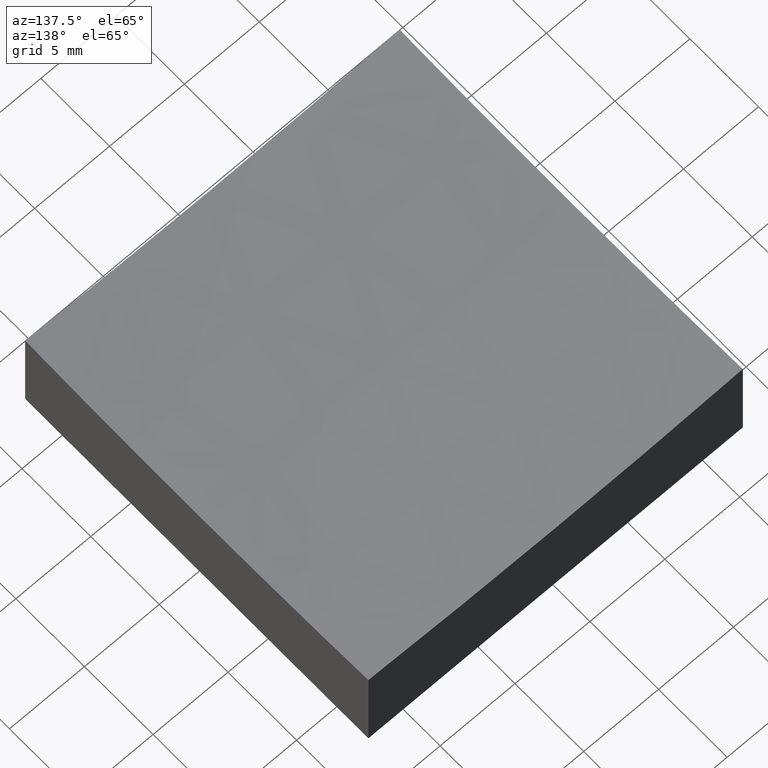
[diagram: clean part render]
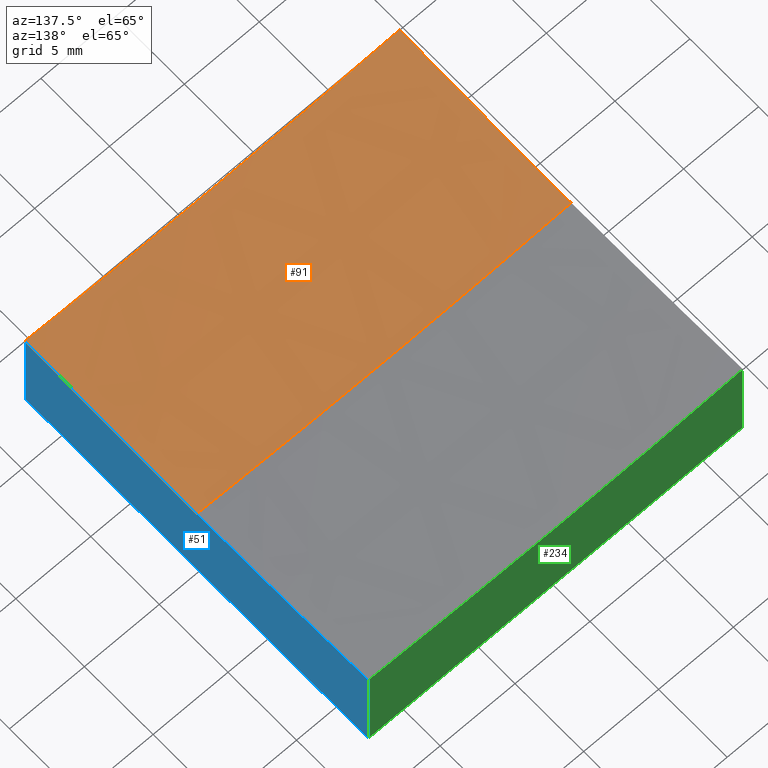
[diagram: same view with three faces highlighted in distinct colors, each labeled with its STEP entity id]
A machine part, auxiliary view with three faces highlighted in distinct colors.
Their STEP definitions:

[orange] entity #91 — the highlighted spherical surface has radius 200 mm.
#3 = ORIENTED_EDGE ( 'NONE', *, *, #20, .T. ) ;
#5 = DIRECTION ( 'NONE',  ( 0.0000000000000000000, 0.0000000000000000000, -1.000000000000000000 ) ) ;
#20 = EDGE_CURVE ( 'NONE', #95, #228, #72, .T. ) ;
#26 = CARTESIAN_POINT ( 'NONE',  ( 12.50000000000000355, -12.50000000000000000, 6.782781868634652156 ) ) ;
#27 = CIRCLE ( 'NONE', #36, 199.6089927833914430 ) ;
#30 = DIRECTION ( 'NONE',  ( 1.000000000000000000, 1.387778780781445676E-16, -0.0000000000000000000 ) ) ;
#32 = CARTESIAN_POINT ( 'NONE',  ( -12.49999999999999822, 1.530808498934192310E-15, 6.391007216608610264 ) ) ;
#36 = AXIS2_PLACEMENT_3D ( 'NONE', #171, #73, #203 ) ;
#57 = DIRECTION ( 'NONE',  ( 1.224646799147353207E-16, 1.000000000000000000, -1.241382061109245171E-32 ) ) ;
#61 = ORIENTED_EDGE ( 'NONE', *, *, #246, .F. ) ;
#64 = DIRECTION ( 'NONE',  ( 0.0000000000000000000, -1.000000000000000000, -0.0000000000000000000 ) ) ;
#65 = CARTESIAN_POINT ( 'NONE',  ( 12.50000000000000178, 1.734723475976803742E-15, 206.0000000000000284 ) ) ;
#71 = AXIS2_PLACEMENT_3D ( 'NONE', #128, #197, #160 ) ;
#72 = CIRCLE ( 'NONE', #219, 199.6089927833914146 ) ;
#73 = DIRECTION ( 'NONE',  ( 0.0000000000000000000, 1.000000000000000000, 0.0000000000000000000 ) ) ;
#80 = SPHERICAL_SURFACE ( 'NONE', #71, 200.0000000000000000 ) ;
#83 = CARTESIAN_POINT ( 'NONE',  ( -12.49999999999999645, -12.50000000000000000, 6.782781868634652156 ) ) ;
#91 = ADVANCED_FACE ( 'NONE', ( #166 ), #80, .F. ) ;
#94 = VERTEX_POINT ( 'NONE', #164 ) ;
#95 = VERTEX_POINT ( 'NONE', #26 ) ;
#105 = DIRECTION ( 'NONE',  ( -1.000000000000000000, 1.224646799147353207E-16, 0.0000000000000000000 ) ) ;
#107 = CARTESIAN_POINT ( 'NONE',  ( 2.522772406243548785E-14, 0.0000000000000000000, 206.0000000000000284 ) ) ;
#110 = CIRCLE ( 'NONE', #249, 199.6089927833914146 ) ;
#123 = CARTESIAN_POINT ( 'NONE',  ( 2.522772406243548785E-14, 0.0000000000000000000, 206.0000000000000284 ) ) ;
#128 = CARTESIAN_POINT ( 'NONE',  ( 2.522772406243548785E-14, 0.0000000000000000000, 206.0000000000000284 ) ) ;
#132 = EDGE_CURVE ( 'NONE', #94, #146, #180, .T. ) ;
#133 = CARTESIAN_POINT ( 'NONE',  ( 12.50000000000000000, 0.0000000000000000000, 6.391007216608610264 ) ) ;
#142 = ORIENTED_EDGE ( 'NONE', *, *, #149, .F. ) ;
#143 = CARTESIAN_POINT ( 'NONE',  ( -12.49999999999999822, -1.734723475976810644E-15, 206.0000000000000284 ) ) ;
#146 = VERTEX_POINT ( 'NONE', #32 ) ;
#149 = EDGE_CURVE ( 'NONE', #172, #146, #110, .T. ) ;
#157 = AXIS2_PLACEMENT_3D ( 'NONE', #123, #57, #105 ) ;
#160 = DIRECTION ( 'NONE',  ( 1.000000000000000000, 0.0000000000000000000, -1.387778780781445676E-16 ) ) ;
#164 = CARTESIAN_POINT ( 'NONE',  ( 1.720088448517093624E-14, 0.0000000000000000000, 6.000000000000005329 ) ) ;
#166 = FACE_OUTER_BOUND ( 'NONE', #217, .T. ) ;
#168 = EDGE_CURVE ( 'NONE', #94, #228, #230, .T. ) ;
#171 = CARTESIAN_POINT ( 'NONE',  ( 2.522772406243548785E-14, -12.50000000000000000, 206.0000000000000284 ) ) ;
#172 = VERTEX_POINT ( 'NONE', #83 ) ;
#175 = DIRECTION ( 'NONE',  ( 1.000000000000000000, 1.387778780781445676E-16, -0.0000000000000000000 ) ) ;
#179 = DIRECTION ( 'NONE',  ( -1.390497253084598109E-16, 1.000000000000000000, 0.0000000000000000000 ) ) ;
#180 = CIRCLE ( 'NONE', #157, 200.0000000000000000 ) ;
#181 = ORIENTED_EDGE ( 'NONE', *, *, #168, .F. ) ;
#197 = DIRECTION ( 'NONE',  ( 0.0000000000000000000, 1.000000000000000000, 0.0000000000000000000 ) ) ;
#203 = DIRECTION ( 'NONE',  ( 0.0000000000000000000, 0.0000000000000000000, 1.000000000000000000 ) ) ;
#213 = DIRECTION ( 'NONE',  ( -1.390497253084598109E-16, 1.000000000000000000, 0.0000000000000000000 ) ) ;
#217 = EDGE_LOOP ( 'NONE', ( #181, #240, #142, #61, #3 ) ) ;
#219 = AXIS2_PLACEMENT_3D ( 'NONE', #65, #175, #213 ) ;
#228 = VERTEX_POINT ( 'NONE', #133 ) ;
#230 = CIRCLE ( 'NONE', #236, 200.0000000000000000 ) ;
#236 = AXIS2_PLACEMENT_3D ( 'NONE', #107, #64, #5 ) ;
#240 = ORIENTED_EDGE ( 'NONE', *, *, #132, .T. ) ;
#246 = EDGE_CURVE ( 'NONE', #95, #172, #27, .T. ) ;
#249 = AXIS2_PLACEMENT_3D ( 'NONE', #143, #30, #179 ) ;

[blue] entity #51 — the highlighted planar face has unit normal (1, 0, -0).
#2 = DIRECTION ( 'NONE',  ( -0.0000000000000000000, -0.0000000000000000000, -1.000000000000000000 ) ) ;
#6 = ORIENTED_EDGE ( 'NONE', *, *, #20, .F. ) ;
#8 = DIRECTION ( 'NONE',  ( -0.0000000000000000000, -0.0000000000000000000, -1.000000000000000000 ) ) ;
#10 = VECTOR ( 'NONE', #8, 1000.000000000000000 ) ;
#12 = EDGE_CURVE ( 'NONE', #119, #31, #106, .T. ) ;
#20 = EDGE_CURVE ( 'NONE', #95, #228, #72, .T. ) ;
#23 = CARTESIAN_POINT ( 'NONE',  ( 12.50000000000000355, -12.50000000000000000, 20.00000000000000000 ) ) ;
#26 = CARTESIAN_POINT ( 'NONE',  ( 12.50000000000000355, -12.50000000000000000, 6.782781868634652156 ) ) ;
#31 = VERTEX_POINT ( 'NONE', #100 ) ;
#35 = DIRECTION ( 'NONE',  ( -1.390497253084598109E-16, 1.000000000000000000, 0.0000000000000000000 ) ) ;
#37 = ORIENTED_EDGE ( 'NONE', *, *, #12, .F. ) ;
#40 = PLANE ( 'NONE',  #58 ) ;
#42 = CARTESIAN_POINT ( 'NONE',  ( 12.50000000000000000, 12.50000000000000000, 6.782781868634652156 ) ) ;
#46 = LINE ( 'NONE', #23, #93 ) ;
#47 = FACE_OUTER_BOUND ( 'NONE', #207, .T. ) ;
#49 = CARTESIAN_POINT ( 'NONE',  ( 12.50000000000000355, -12.50000000000000000, 0.0000000000000000000 ) ) ;
#51 = ADVANCED_FACE ( 'NONE', ( #47 ), #40, .T. ) ;
#54 = AXIS2_PLACEMENT_3D ( 'NONE', #243, #170, #35 ) ;
#58 = AXIS2_PLACEMENT_3D ( 'NONE', #129, #121, #196 ) ;
#65 = CARTESIAN_POINT ( 'NONE',  ( 12.50000000000000178, 1.734723475976803742E-15, 206.0000000000000284 ) ) ;
#72 = CIRCLE ( 'NONE', #219, 199.6089927833914146 ) ;
#93 = VECTOR ( 'NONE', #2, 1000.000000000000000 ) ;
#95 = VERTEX_POINT ( 'NONE', #26 ) ;
#97 = ORIENTED_EDGE ( 'NONE', *, *, #158, .T. ) ;
#98 = EDGE_CURVE ( 'NONE', #31, #242, #214, .T. ) ;
#100 = CARTESIAN_POINT ( 'NONE',  ( 12.50000000000000000, 12.50000000000000000, 0.0000000000000000000 ) ) ;
#102 = DIRECTION ( 'NONE',  ( 1.387778780781445676E-16, -1.000000000000000000, 0.0000000000000000000 ) ) ;
#103 = VECTOR ( 'NONE', #102, 1000.000000000000000 ) ;
#106 = LINE ( 'NONE', #183, #10 ) ;
#119 = VERTEX_POINT ( 'NONE', #42 ) ;
#121 = DIRECTION ( 'NONE',  ( 1.000000000000000000, 1.387778780781445676E-16, -0.0000000000000000000 ) ) ;
#129 = CARTESIAN_POINT ( 'NONE',  ( 12.50000000000000000, 12.50000000000000000, 20.00000000000000000 ) ) ;
#133 = CARTESIAN_POINT ( 'NONE',  ( 12.50000000000000000, 0.0000000000000000000, 6.391007216608610264 ) ) ;
#156 = CIRCLE ( 'NONE', #54, 199.6089927833914146 ) ;
#158 = EDGE_CURVE ( 'NONE', #95, #242, #46, .T. ) ;
#165 = ORIENTED_EDGE ( 'NONE', *, *, #206, .F. ) ;
#170 = DIRECTION ( 'NONE',  ( 1.000000000000000000, 1.387778780781445676E-16, -0.0000000000000000000 ) ) ;
#175 = DIRECTION ( 'NONE',  ( 1.000000000000000000, 1.387778780781445676E-16, -0.0000000000000000000 ) ) ;
#183 = CARTESIAN_POINT ( 'NONE',  ( 12.50000000000000000, 12.50000000000000000, 20.00000000000000000 ) ) ;
#191 = ORIENTED_EDGE ( 'NONE', *, *, #98, .F. ) ;
#196 = DIRECTION ( 'NONE',  ( -1.387778780781445676E-16, 1.000000000000000000, 0.0000000000000000000 ) ) ;
#201 = CARTESIAN_POINT ( 'NONE',  ( 12.50000000000000000, 12.50000000000000000, 0.0000000000000000000 ) ) ;
#206 = EDGE_CURVE ( 'NONE', #228, #119, #156, .T. ) ;
#207 = EDGE_LOOP ( 'NONE', ( #6, #97, #191, #37, #165 ) ) ;
#213 = DIRECTION ( 'NONE',  ( -1.390497253084598109E-16, 1.000000000000000000, 0.0000000000000000000 ) ) ;
#214 = LINE ( 'NONE', #201, #103 ) ;
#219 = AXIS2_PLACEMENT_3D ( 'NONE', #65, #175, #213 ) ;
#228 = VERTEX_POINT ( 'NONE', #133 ) ;
#242 = VERTEX_POINT ( 'NONE', #49 ) ;
#243 = CARTESIAN_POINT ( 'NONE',  ( 12.50000000000000178, 1.734723475976803742E-15, 206.0000000000000284 ) ) ;

[green] entity #234 — the highlighted planar face has unit normal (0, 1, 0).
#7 = LINE ( 'NONE', #161, #188 ) ;
#8 = DIRECTION ( 'NONE',  ( -0.0000000000000000000, -0.0000000000000000000, -1.000000000000000000 ) ) ;
#10 = VECTOR ( 'NONE', #8, 1000.000000000000000 ) ;
#12 = EDGE_CURVE ( 'NONE', #119, #31, #106, .T. ) ;
#16 = ORIENTED_EDGE ( 'NONE', *, *, #12, .T. ) ;
#18 = ORIENTED_EDGE ( 'NONE', *, *, #118, .F. ) ;
#22 = ORIENTED_EDGE ( 'NONE', *, *, #89, .F. ) ;
#28 = CARTESIAN_POINT ( 'NONE',  ( -12.50000000000000000, 12.50000000000000000, 6.782781868634652156 ) ) ;
#31 = VERTEX_POINT ( 'NONE', #100 ) ;
#41 = EDGE_CURVE ( 'NONE', #119, #78, #136, .T. ) ;
#42 = CARTESIAN_POINT ( 'NONE',  ( 12.50000000000000000, 12.50000000000000000, 6.782781868634652156 ) ) ;
#50 = PLANE ( 'NONE',  #204 ) ;
#77 = LINE ( 'NONE', #182, #162 ) ;
#78 = VERTEX_POINT ( 'NONE', #28 ) ;
#85 = DIRECTION ( 'NONE',  ( -0.0000000000000000000, -0.0000000000000000000, -1.000000000000000000 ) ) ;
#89 = EDGE_CURVE ( 'NONE', #193, #31, #77, .T. ) ;
#100 = CARTESIAN_POINT ( 'NONE',  ( 12.50000000000000000, 12.50000000000000000, 0.0000000000000000000 ) ) ;
#106 = LINE ( 'NONE', #183, #10 ) ;
#109 = FACE_OUTER_BOUND ( 'NONE', #140, .T. ) ;
#112 = CARTESIAN_POINT ( 'NONE',  ( -12.50000000000000000, 12.50000000000000000, 20.00000000000000000 ) ) ;
#118 = EDGE_CURVE ( 'NONE', #78, #193, #7, .T. ) ;
#119 = VERTEX_POINT ( 'NONE', #42 ) ;
#124 = CARTESIAN_POINT ( 'NONE',  ( 2.522772406243548785E-14, 12.50000000000000000, 206.0000000000000284 ) ) ;
#131 = DIRECTION ( 'NONE',  ( 0.0000000000000000000, 1.000000000000000000, 0.0000000000000000000 ) ) ;
#136 = CIRCLE ( 'NONE', #251, 199.6089927833914430 ) ;
#140 = EDGE_LOOP ( 'NONE', ( #189, #16, #22, #18 ) ) ;
#161 = CARTESIAN_POINT ( 'NONE',  ( -12.50000000000000000, 12.50000000000000000, 20.00000000000000000 ) ) ;
#162 = VECTOR ( 'NONE', #195, 1000.000000000000000 ) ;
#163 = DIRECTION ( 'NONE',  ( 0.0000000000000000000, 1.000000000000000000, 0.0000000000000000000 ) ) ;
#182 = CARTESIAN_POINT ( 'NONE',  ( -12.50000000000000000, 12.50000000000000000, 0.0000000000000000000 ) ) ;
#183 = CARTESIAN_POINT ( 'NONE',  ( 12.50000000000000000, 12.50000000000000000, 20.00000000000000000 ) ) ;
#184 = CARTESIAN_POINT ( 'NONE',  ( -12.50000000000000000, 12.50000000000000000, 0.0000000000000000000 ) ) ;
#188 = VECTOR ( 'NONE', #85, 1000.000000000000000 ) ;
#189 = ORIENTED_EDGE ( 'NONE', *, *, #41, .F. ) ;
#193 = VERTEX_POINT ( 'NONE', #184 ) ;
#195 = DIRECTION ( 'NONE',  ( 1.000000000000000000, 0.0000000000000000000, 0.0000000000000000000 ) ) ;
#204 = AXIS2_PLACEMENT_3D ( 'NONE', #112, #131, #224 ) ;
#220 = DIRECTION ( 'NONE',  ( 0.0000000000000000000, 0.0000000000000000000, 1.000000000000000000 ) ) ;
#224 = DIRECTION ( 'NONE',  ( 0.0000000000000000000, -0.0000000000000000000, 1.000000000000000000 ) ) ;
#234 = ADVANCED_FACE ( 'NONE', ( #109 ), #50, .T. ) ;
#251 = AXIS2_PLACEMENT_3D ( 'NONE', #124, #163, #220 ) ;